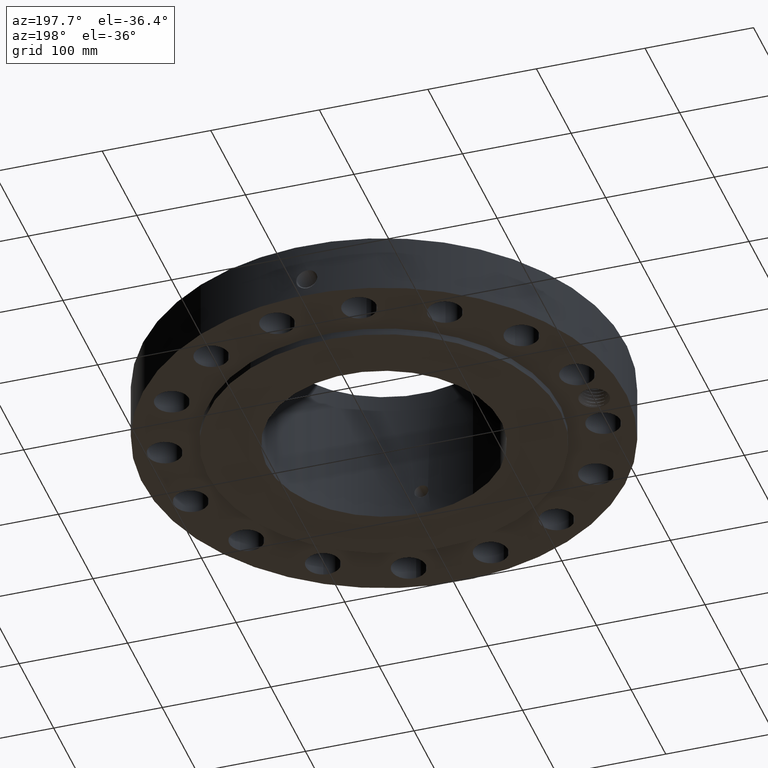
[diagram: clean part render]
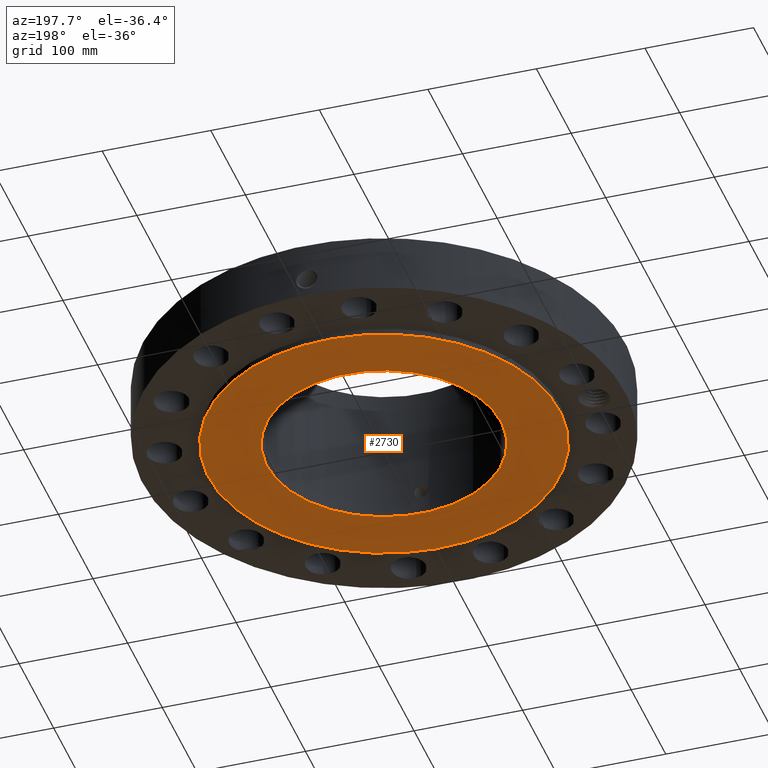
[diagram: same view with one face highlighted and labeled with its STEP entity id]
A machine part, auxiliary view. The second image highlights one B-rep face of the part: STEP entity #2730.
In plain terms, the highlighted planar face has unit normal (0, 0, -1).
Its self-contained STEP definition (entity closure, byte-faithful):
#1454=AXIS2_PLACEMENT_3D('Circle Axis2P3D',#1452,#1453,$) ;
#1480=AXIS2_PLACEMENT_3D('Circle Axis2P3D',#1478,#1479,$) ;
#2706=AXIS2_PLACEMENT_3D('Plane Axis2P3D',#2703,#2704,#2705) ;
#2714=AXIS2_PLACEMENT_3D('Circle Axis2P3D',#2712,#2713,$) ;
#2723=AXIS2_PLACEMENT_3D('Circle Axis2P3D',#2721,#2722,$) ;
#1452=CARTESIAN_POINT('Axis2P3D Location',(0.,0.,5.59482469102E-016)) ;
#1456=CARTESIAN_POINT('Vertex',(3.05633780861,5.59458883207,5.59482469102E-016)) ;
#1458=CARTESIAN_POINT('Vertex',(-3.05633780861,-5.59458883207,5.59482469102E-016)) ;
#1478=CARTESIAN_POINT('Axis2P3D Location',(0.,0.,5.59482469102E-016)) ;
#2703=CARTESIAN_POINT('Axis2P3D Location',(0.,4.25000000002,0.)) ;
#2712=CARTESIAN_POINT('Axis2P3D Location',(0.,0.,0.)) ;
#2716=CARTESIAN_POINT('Vertex',(2.03755853908,3.72972588805,-1.67844740731E-014)) ;
#2718=CARTESIAN_POINT('Vertex',(-2.03755853908,-3.72972588805,-1.67844740731E-014)) ;
#2721=CARTESIAN_POINT('Axis2P3D Location',(0.,0.,0.)) ;
#1453=DIRECTION('Axis2P3D Direction',(0.,0.,-0.0393700787402)) ;
#1479=DIRECTION('Axis2P3D Direction',(0.,0.,-0.0393700787402)) ;
#2704=DIRECTION('Axis2P3D Direction',(0.,0.,-0.0393700787402)) ;
#2705=DIRECTION('Axis2P3D XDirection',(0.0393700787402,0.,0.)) ;
#2713=DIRECTION('Axis2P3D Direction',(0.,0.,-0.0393700787402)) ;
#2722=DIRECTION('Axis2P3D Direction',(0.,0.,-0.0393700787402)) ;
#2709=ORIENTED_EDGE('',*,*,#1482,.T.) ;
#2710=ORIENTED_EDGE('',*,*,#1460,.T.) ;
#2727=ORIENTED_EDGE('',*,*,#2720,.F.) ;
#2728=ORIENTED_EDGE('',*,*,#2725,.F.) ;
#2729=FACE_BOUND('',#2726,.T.) ;
#2730=ADVANCED_FACE('PartBody',(#2711,#2729),#2707,.T.) ;
#1455=CIRCLE('generated circle',#1454,6.37500000003) ;
#1481=CIRCLE('generated circle',#1480,6.37500000003) ;
#2715=CIRCLE('generated circle',#2714,4.25000000002) ;
#2724=CIRCLE('generated circle',#2723,4.25000000002) ;
#1460=EDGE_CURVE('',#1457,#1459,#1455,.T.) ;
#1482=EDGE_CURVE('',#1459,#1457,#1481,.T.) ;
#2720=EDGE_CURVE('',#2717,#2719,#2715,.T.) ;
#2725=EDGE_CURVE('',#2719,#2717,#2724,.T.) ;
#2708=EDGE_LOOP('',(#2709,#2710)) ;
#2726=EDGE_LOOP('',(#2727,#2728)) ;
#2711=FACE_OUTER_BOUND('',#2708,.T.) ;
#2707=PLANE('',#2706) ;
#1457=VERTEX_POINT('',#1456) ;
#1459=VERTEX_POINT('',#1458) ;
#2717=VERTEX_POINT('',#2716) ;
#2719=VERTEX_POINT('',#2718) ;